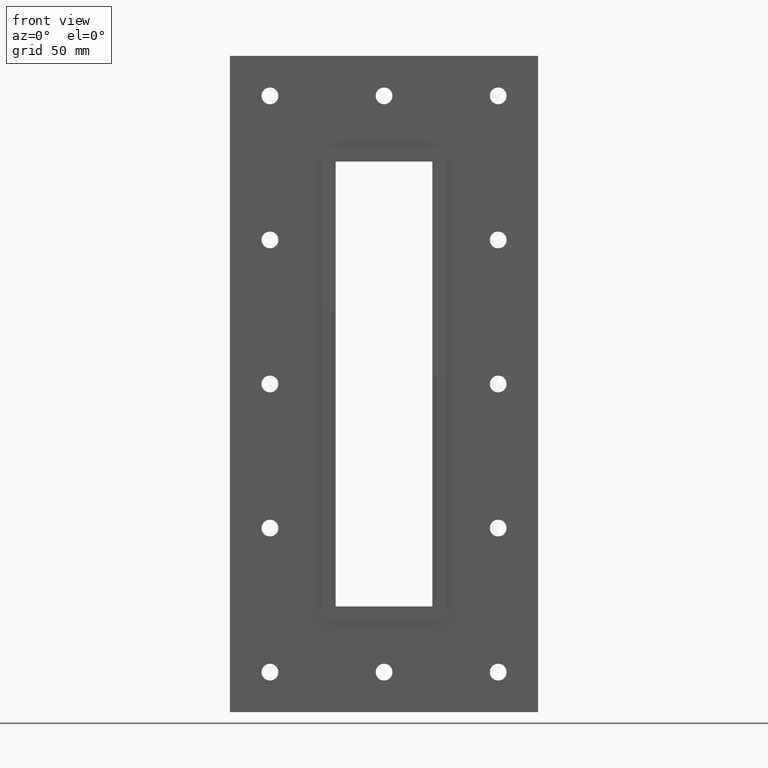
[diagram: clean part render]
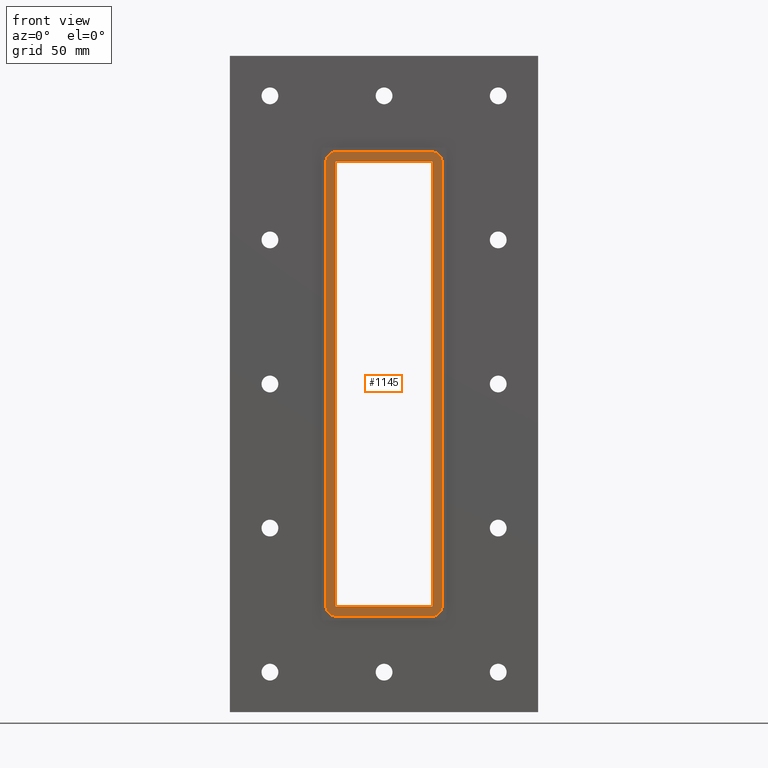
[diagram: same view with one face highlighted and labeled with its STEP entity id]
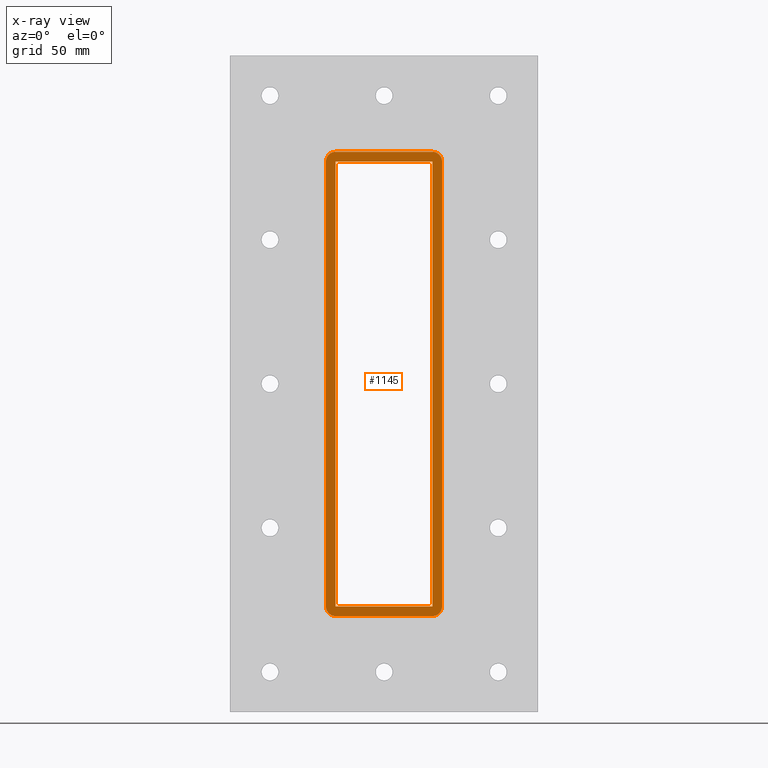
[diagram: x-ray of the same camera — body ghosted, the highlighted face saturated]
A machine part, front view. The second image highlights one B-rep face of the part: STEP entity #1145.
The next image is the same camera in x-ray: the body ghosted, the highlighted face saturated — about 0% of this face is hidden behind the body in this view.
In plain terms, the highlighted planar face has unit normal (0, 1, 0).
Its self-contained STEP definition (entity closure, byte-faithful):
#769=CARTESIAN_POINT('',(-30.250000000000007,-3.0,-139.0));
#770=VERTEX_POINT('',#769);
#787=CARTESIAN_POINT('',(-30.250000000000007,-3.0,139.0));
#788=VERTEX_POINT('',#787);
#795=CARTESIAN_POINT('',(-30.250000000000004,-3.0,-139.0));
#796=DIRECTION('',(0.0,0.0,1.0));
#797=VECTOR('',#796,278.0);
#798=LINE('',#795,#797);
#799=EDGE_CURVE('',#770,#788,#798,.T.);
#810=CARTESIAN_POINT('',(30.25,-3.0,145.0));
#811=VERTEX_POINT('',#810);
#818=CARTESIAN_POINT('',(36.250000000000007,-3.0,139.0));
#819=VERTEX_POINT('',#818);
#820=CARTESIAN_POINT('',(30.250000000000004,-3.0,139.0));
#821=DIRECTION('',(0.0,1.0,0.0));
#822=DIRECTION('',(0.707106781186548,0.0,0.707106781186547));
#823=AXIS2_PLACEMENT_3D('',#820,#821,#822);
#824=CIRCLE('',#823,6.0);
#825=EDGE_CURVE('',#811,#819,#824,.T.);
#875=CARTESIAN_POINT('',(36.250000000000007,-3.0,-139.0));
#876=VERTEX_POINT('',#875);
#877=CARTESIAN_POINT('',(36.250000000000007,-3.0,-139.0));
#878=DIRECTION('',(0.0,0.0,1.0));
#879=VECTOR('',#878,278.0);
#880=LINE('',#877,#879);
#881=EDGE_CURVE('',#876,#819,#880,.T.);
#922=CARTESIAN_POINT('',(-30.250000000000004,-3.0,145.0));
#923=VERTEX_POINT('',#922);
#930=CARTESIAN_POINT('',(30.249999999999993,-3.0,145.0));
#931=DIRECTION('',(-1.0,0.0,0.0));
#932=VECTOR('',#931,60.5);
#933=LINE('',#930,#932);
#934=EDGE_CURVE('',#811,#923,#933,.T.);
#947=CARTESIAN_POINT('',(30.250000000000004,-3.0,-145.0));
#948=VERTEX_POINT('',#947);
#949=CARTESIAN_POINT('',(30.250000000000004,-3.0,-139.0));
#950=DIRECTION('',(0.0,1.0,0.0));
#951=DIRECTION('',(0.707106781186546,0.0,-0.707106781186549));
#952=AXIS2_PLACEMENT_3D('',#949,#950,#951);
#953=CIRCLE('',#952,6.000000000000001);
#954=EDGE_CURVE('',#876,#948,#953,.T.);
#996=CARTESIAN_POINT('',(-36.250000000000007,-3.0,139.0));
#997=VERTEX_POINT('',#996);
#1004=CARTESIAN_POINT('',(-30.250000000000004,-3.0,139.0));
#1005=DIRECTION('',(0.0,1.0,0.0));
#1006=DIRECTION('',(-0.707106781186546,0.0,0.707106781186549));
#1007=AXIS2_PLACEMENT_3D('',#1004,#1005,#1006);
#1008=CIRCLE('',#1007,6.000000000000001);
#1009=EDGE_CURVE('',#997,#923,#1008,.T.);
#1022=CARTESIAN_POINT('',(-30.25,-3.0,-145.0));
#1023=VERTEX_POINT('',#1022);
#1024=CARTESIAN_POINT('',(-30.249999999999993,-3.0,-145.0));
#1025=DIRECTION('',(1.0,0.0,0.0));
#1026=VECTOR('',#1025,60.5);
#1027=LINE('',#1024,#1026);
#1028=EDGE_CURVE('',#1023,#948,#1027,.T.);
#1069=CARTESIAN_POINT('',(-36.250000000000007,-3.0,-139.0));
#1070=VERTEX_POINT('',#1069);
#1077=CARTESIAN_POINT('',(-36.250000000000007,-3.0,139.0));
#1078=DIRECTION('',(0.0,0.0,-1.0));
#1079=VECTOR('',#1078,278.0);
#1080=LINE('',#1077,#1079);
#1081=EDGE_CURVE('',#997,#1070,#1080,.T.);
#1094=CARTESIAN_POINT('',(-30.250000000000004,-3.0,-139.0));
#1095=DIRECTION('',(0.0,1.0,0.0));
#1096=DIRECTION('',(-0.707106781186546,0.0,-0.707106781186549));
#1097=AXIS2_PLACEMENT_3D('',#1094,#1095,#1096);
#1098=CIRCLE('',#1097,6.000000000000001);
#1099=EDGE_CURVE('',#1023,#1070,#1098,.T.);
#1105=CARTESIAN_POINT('',(0.0,-3.0,0.0));
#1106=DIRECTION('',(0.0,1.0,0.0));
#1107=DIRECTION('',(0.0,0.0,1.0));
#1108=AXIS2_PLACEMENT_3D('',#1105,#1106,#1107);
#1109=PLANE('',#1108);
#1110=ORIENTED_EDGE('',*,*,#954,.F.);
#1111=ORIENTED_EDGE('',*,*,#881,.T.);
#1112=ORIENTED_EDGE('',*,*,#825,.F.);
#1113=ORIENTED_EDGE('',*,*,#934,.T.);
#1114=ORIENTED_EDGE('',*,*,#1009,.F.);
#1115=ORIENTED_EDGE('',*,*,#1081,.T.);
#1116=ORIENTED_EDGE('',*,*,#1099,.F.);
#1117=ORIENTED_EDGE('',*,*,#1028,.T.);
#1118=EDGE_LOOP('',(#1110,#1111,#1112,#1113,#1114,#1115,#1116,#1117));
#1119=FACE_OUTER_BOUND('',#1118,.T.);
#1120=CARTESIAN_POINT('',(30.25,-3.0,139.0));
#1121=VERTEX_POINT('',#1120);
#1122=CARTESIAN_POINT('',(30.25,-3.0,-139.0));
#1123=VERTEX_POINT('',#1122);
#1124=CARTESIAN_POINT('',(30.25,-3.0,139.0));
#1125=DIRECTION('',(0.0,0.0,-1.0));
#1126=VECTOR('',#1125,278.0);
#1127=LINE('',#1124,#1126);
#1128=EDGE_CURVE('',#1121,#1123,#1127,.T.);
#1129=ORIENTED_EDGE('',*,*,#1128,.T.);
#1130=CARTESIAN_POINT('',(30.25,-3.0,-139.0));
#1131=DIRECTION('',(-1.0,0.0,0.0));
#1132=VECTOR('',#1131,60.500000000000007);
#1133=LINE('',#1130,#1132);
#1134=EDGE_CURVE('',#1123,#770,#1133,.T.);
#1135=ORIENTED_EDGE('',*,*,#1134,.T.);
#1136=ORIENTED_EDGE('',*,*,#799,.T.);
#1137=CARTESIAN_POINT('',(-30.250000000000007,-3.0,139.0));
#1138=DIRECTION('',(1.0,0.0,0.0));
#1139=VECTOR('',#1138,60.500000000000007);
#1140=LINE('',#1137,#1139);
#1141=EDGE_CURVE('',#788,#1121,#1140,.T.);
#1142=ORIENTED_EDGE('',*,*,#1141,.T.);
#1143=EDGE_LOOP('',(#1129,#1135,#1136,#1142));
#1144=FACE_BOUND('',#1143,.T.);
#1145=ADVANCED_FACE('',(#1119,#1144),#1109,.F.);